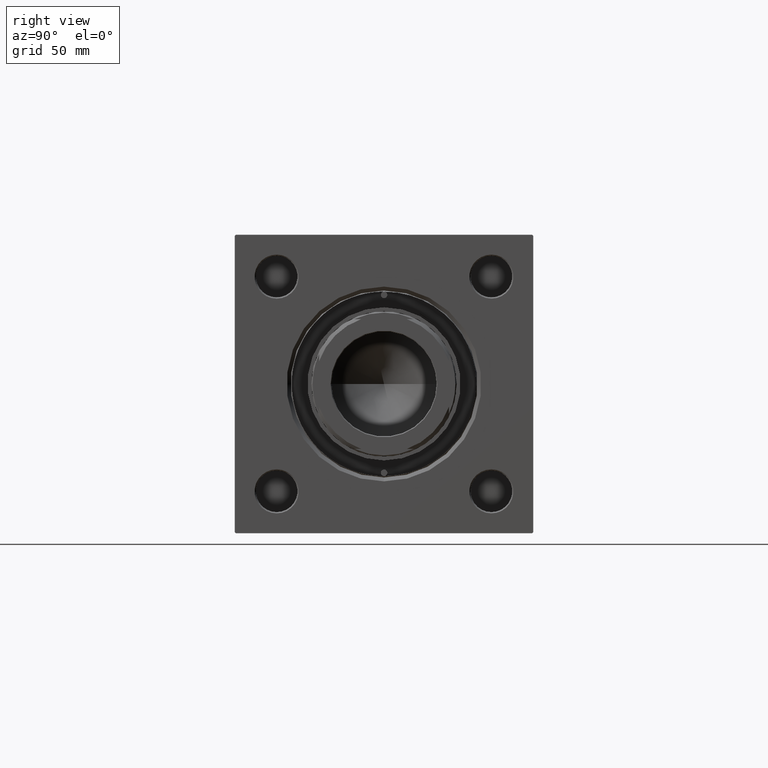
[diagram: clean part render]
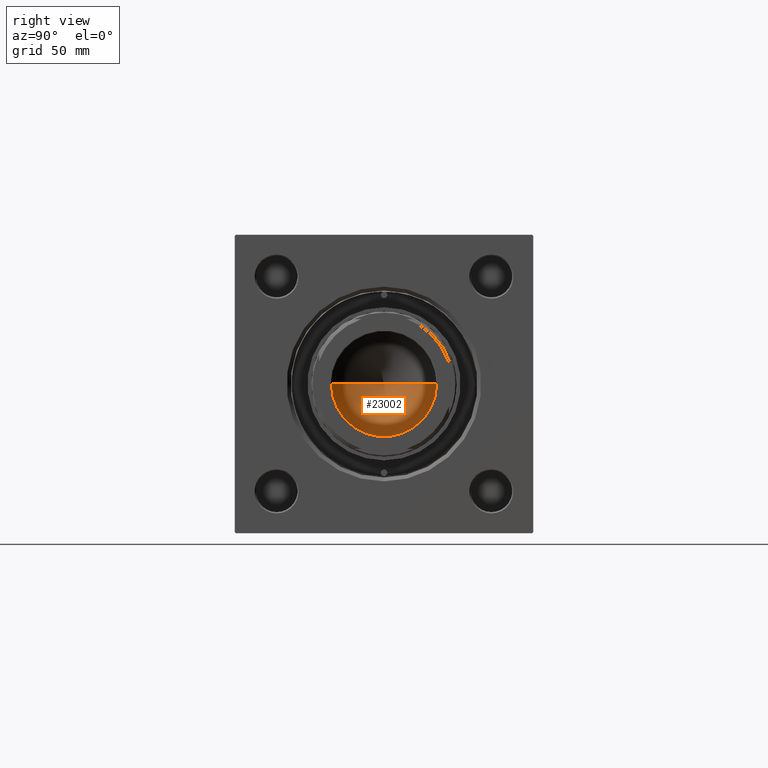
[diagram: same view with one face highlighted and labeled with its STEP entity id]
A machine part, right view. The second image highlights one B-rep face of the part: STEP entity #23002.
In plain terms, the highlighted conical surface has half-angle 59 deg.
Its self-contained STEP definition (entity closure, byte-faithful):
#1790 = VECTOR ( 'NONE', #28005, 1000.000000000000000 ) ;
#10863 = CARTESIAN_POINT ( 'NONE',  ( 0.000000000000000000, 0.000000000000000000, 105.0000000000000142 ) ) ;
#11233 = ORIENTED_EDGE ( 'NONE', *, *, #20805, .T. ) ;
#13637 = LINE ( 'NONE', #32409, #15040 ) ;
#14002 = FACE_OUTER_BOUND ( 'NONE', #35810, .T. ) ;
#14966 = DIRECTION ( 'NONE',  ( 1.000000000000000000, 0.000000000000000000, 0.000000000000000000 ) ) ;
#15040 = VECTOR ( 'NONE', #28559, 1000.000000000000000 ) ;
#15114 = CARTESIAN_POINT ( 'NONE',  ( -20.24999999999998934, 2.479909768273389117E-15, 105.0000000000000142 ) ) ;
#17943 = EDGE_CURVE ( 'NONE', #47167, #44448, #35979, .T. ) ;
#20805 = EDGE_CURVE ( 'NONE', #47167, #33279, #13637, .T. ) ;
#22328 = CONICAL_SURFACE ( 'NONE', #24923, 20.24999999999998934, 1.029744258676652979 ) ;
#23002 = ADVANCED_FACE ( 'NONE', ( #14002 ), #22328, .F. ) ;
#24923 = AXIS2_PLACEMENT_3D ( 'NONE', #28916, #48710, #36893 ) ;
#25127 = ORIENTED_EDGE ( 'NONE', *, *, #32104, .T. ) ;
#27552 = AXIS2_PLACEMENT_3D ( 'NONE', #10863, #49397, #14966 ) ;
#28005 = DIRECTION ( 'NONE',  ( -0.8571673007021115565, 1.049727191138617710E-16, 0.5150380749100554878 ) ) ;
#28559 = DIRECTION ( 'NONE',  ( 0.8571673007021115565, 0.000000000000000000, 0.5150380749100554878 ) ) ;
#28916 = CARTESIAN_POINT ( 'NONE',  ( 0.000000000000000000, 0.000000000000000000, 105.0000000000000142 ) ) ;
#29202 = CIRCLE ( 'NONE', #27552, 20.24999999999998934 ) ;
#30510 = CARTESIAN_POINT ( 'NONE',  ( 20.24999999999998934, 0.000000000000000000, 105.0000000000000142 ) ) ;
#32104 = EDGE_CURVE ( 'NONE', #33279, #44448, #29202, .T. ) ;
#32409 = CARTESIAN_POINT ( 'NONE',  ( 20.24999999999998934, 0.000000000000000000, 105.0000000000000142 ) ) ;
#32878 = CARTESIAN_POINT ( 'NONE',  ( -20.24999999999998934, 2.479909768273389117E-15, 105.0000000000000142 ) ) ;
#33279 = VERTEX_POINT ( 'NONE', #30510 ) ;
#35810 = EDGE_LOOP ( 'NONE', ( #38782, #11233, #25127 ) ) ;
#35979 = LINE ( 'NONE', #32878, #1790 ) ;
#36893 = DIRECTION ( 'NONE',  ( 1.000000000000000000, 0.000000000000000000, 0.000000000000000000 ) ) ;
#38782 = ORIENTED_EDGE ( 'NONE', *, *, #17943, .F. ) ;
#41069 = CARTESIAN_POINT ( 'NONE',  ( -1.584115414415908206E-14, 0.000000000000000000, 92.83257246469187862 ) ) ;
#44448 = VERTEX_POINT ( 'NONE', #15114 ) ;
#47167 = VERTEX_POINT ( 'NONE', #41069 ) ;
#48710 = DIRECTION ( 'NONE',  ( -0.000000000000000000, -0.000000000000000000, 1.000000000000000000 ) ) ;
#49397 = DIRECTION ( 'NONE',  ( -0.000000000000000000, -0.000000000000000000, 1.000000000000000000 ) ) ;